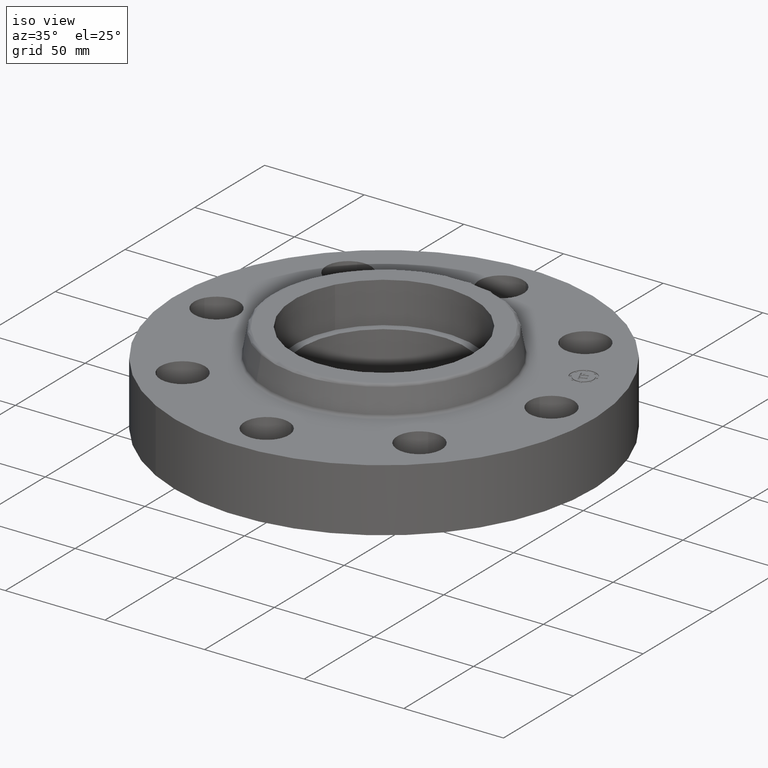
[diagram: clean part render]
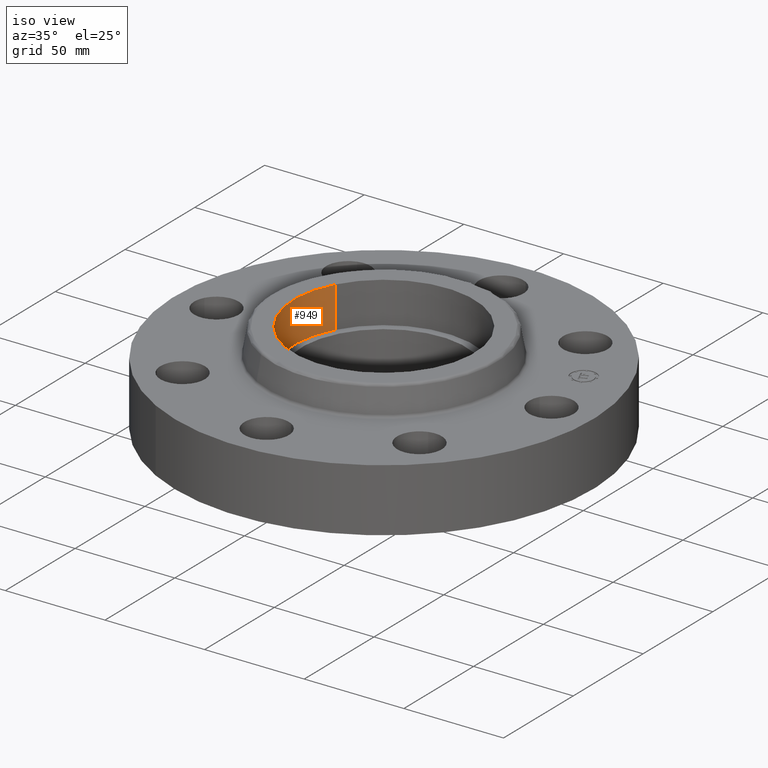
[diagram: same view with one face highlighted and labeled with its STEP entity id]
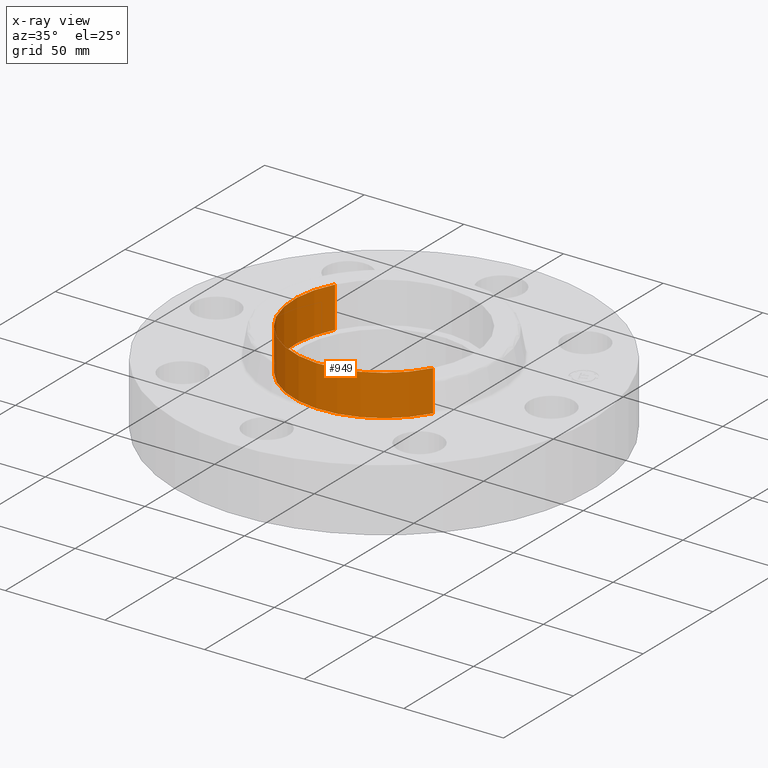
[diagram: x-ray of the same camera — body ghosted, the highlighted face saturated]
A machine part, iso view. The second image highlights one B-rep face of the part: STEP entity #949.
The next image is the same camera in x-ray: the body ghosted, the highlighted face saturated — about 0% of this face is hidden behind the body in this view.
In plain terms, the highlighted cylindrical surface (partial cylindrical patch) has radius 45.339 mm, axis along (0, 0, -1).
Its self-contained STEP definition (entity closure, byte-faithful):
#51=AXIS2_PLACEMENT_3D('Circle Axis2P3D',#49,#50,$) ;
#569=AXIS2_PLACEMENT_3D('Circle Axis2P3D',#567,#568,$) ;
#924=AXIS2_PLACEMENT_3D('Cylinder Axis2P3D',#921,#922,#923) ;
#44=CARTESIAN_POINT('Vertex',(-1.56648487298,0.855774586412,1.)) ;
#46=CARTESIAN_POINT('Vertex',(1.56648487298,-0.855774586412,1.)) ;
#49=CARTESIAN_POINT('Axis2P3D Location',(1.39870617276E-016,3.84644197508E-016,1.)) ;
#562=CARTESIAN_POINT('Vertex',(-1.56648487298,0.855774586412,1.81000000001)) ;
#564=CARTESIAN_POINT('Vertex',(1.56648487298,-0.855774586412,1.81000000001)) ;
#567=CARTESIAN_POINT('Axis2P3D Location',(0.,1.1189649382E-015,1.81000000001)) ;
#921=CARTESIAN_POINT('Axis2P3D Location',(1.39870617276E-016,3.84644197508E-016,1.80606299213)) ;
#926=CARTESIAN_POINT('Line Origine',(-1.56648487298,0.855774586412,1.40500000001)) ;
#931=CARTESIAN_POINT('Line Origine',(1.56648487298,-0.855774586412,1.40500000001)) ;
#50=DIRECTION('Axis2P3D Direction',(0.,0.,-0.0393700787402)) ;
#568=DIRECTION('Axis2P3D Direction',(0.,0.,-0.0393700787402)) ;
#922=DIRECTION('Axis2P3D Direction',(0.,0.,-0.0393700787402)) ;
#923=DIRECTION('Axis2P3D XDirection',(0.0345504945626,-0.0188750212049,0.)) ;
#927=DIRECTION('Vector Direction',(0.,0.,-0.0393700787402)) ;
#932=DIRECTION('Vector Direction',(0.,0.,-0.0393700787402)) ;
#928=VECTOR('Line Direction',#927,0.0393700787402) ;
#933=VECTOR('Line Direction',#932,0.0393700787402) ;
#944=ORIENTED_EDGE('',*,*,#571,.F.) ;
#945=ORIENTED_EDGE('',*,*,#935,.F.) ;
#946=ORIENTED_EDGE('',*,*,#53,.T.) ;
#947=ORIENTED_EDGE('',*,*,#930,.T.) ;
#949=ADVANCED_FACE('PartBody',(#948),#925,.F.) ;
#52=CIRCLE('generated circle',#51,1.78500000001) ;
#570=CIRCLE('generated circle',#569,1.78500000001) ;
#925=CYLINDRICAL_SURFACE('generated cylinder',#924,1.78500000001) ;
#53=EDGE_CURVE('',#47,#45,#52,.T.) ;
#571=EDGE_CURVE('',#565,#563,#570,.T.) ;
#930=EDGE_CURVE('',#45,#563,#929,.F.) ;
#935=EDGE_CURVE('',#47,#565,#934,.F.) ;
#943=EDGE_LOOP('',(#944,#945,#946,#947)) ;
#948=FACE_OUTER_BOUND('',#943,.T.) ;
#929=LINE('Line',#926,#928) ;
#934=LINE('Line',#931,#933) ;
#45=VERTEX_POINT('',#44) ;
#47=VERTEX_POINT('',#46) ;
#563=VERTEX_POINT('',#562) ;
#565=VERTEX_POINT('',#564) ;